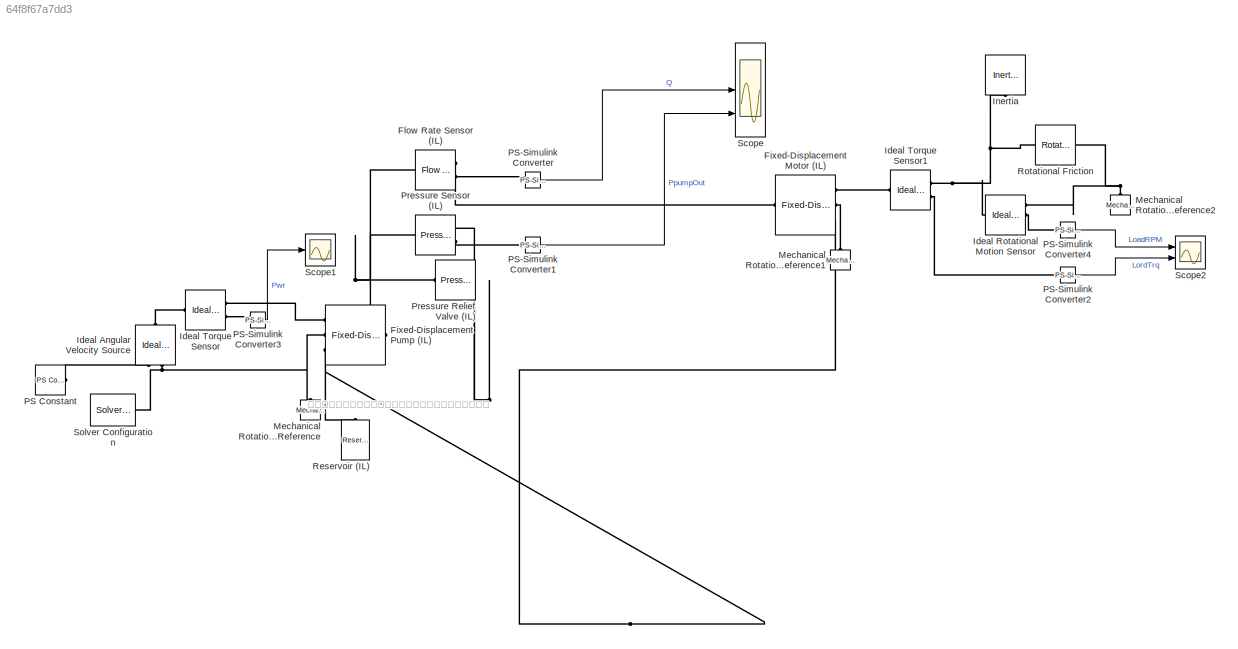
MODEL slx_64f8f67a7dd3
KIND model
CONFIG AbsTol = auto
CONFIG EnableMultiTasking = off
CONFIG FixedStep = auto
CONFIG MaxStep = auto
CONFIG MinStep = auto
CONFIG RelTol = 1e-3
CONFIG SampleTimeConstraint = Unconstrained
CONFIG SolverName = VariableStepAuto
CONFIG StartTime = 0.0
CONFIG StopTime = 10.0
BLOCK [Reference] Fixed-Displacement Motor (IL)  REF=SimscapeFluids_lib/Isothermal Liquid/Pumps & Motors/Fixed-Displacement
Motor (IL)
  Ports = [0, 0, 0, 0, 0, 1, 3]
  SourceBlock = SimscapeFluids_lib/Isothermal Liquid/Pumps & Motors/Fixed-Displacement\nMotor (IL)
  SourceProductBaseCode = SH
  SourceType = Fixed-Displacement\nMotor (IL)
BLOCK [Reference] Fixed-Displacement Pump (IL)  REF=SimscapeFluids_lib/Isothermal Liquid/Pumps & Motors/Fixed-Displacement
Pump (IL)
  NameLocation = top
  Ports = [0, 0, 0, 0, 0, 1, 3]
  SourceBlock = SimscapeFluids_lib/Isothermal Liquid/Pumps & Motors/Fixed-Displacement\nPump (IL)
  SourceProductBaseCode = SH
  SourceType = Fixed-Displacement\nPump (IL)
BLOCK [Reference] Flow Rate Sensor (IL)  REF=fl_lib/Isothermal Liquid/Sensors/Flow Rate Sensor
(IL)
  Ports = [0, 0, 0, 0, 0, 1, 2]
  SourceBlock = fl_lib/Isothermal Liquid/Sensors/Flow Rate Sensor\n(IL)
  SourceProductBaseCode = PW,SS,VE
  SourceType = Flow Rate Sensor\n(IL)
BLOCK [Reference] Ideal Angular Velocity Source  REF=fl_lib/Mechanical/Mechanical Sources/Ideal Angular
Velocity Source
  NameLocation = right
  Ports = [0, 0, 0, 0, 0, 1, 2]
  SourceBlock = fl_lib/Mechanical/Mechanical Sources/Ideal Angular\nVelocity Source
  SourceProductBaseCode = PW,SS,VE
  SourceType = Ideal Angular\nVelocity Source
BLOCK [Reference] Ideal Rotational Motion Sensor  REF=fl_lib/Mechanical/Mechanical Sensors/Ideal Rotational
Motion Sensor
  Ports = [0, 0, 0, 0, 0, 1, 3]
  SourceBlock = fl_lib/Mechanical/Mechanical Sensors/Ideal Rotational\nMotion Sensor
  SourceProductBaseCode = PW,SS,VE
  SourceType = Ideal Rotational\nMotion Sensor
BLOCK [Reference] Ideal Torque Sensor  REF=fl_lib/Mechanical/Mechanical Sensors/Ideal Torque Sensor
  Ports = [0, 0, 0, 0, 0, 1, 2]
  SourceBlock = fl_lib/Mechanical/Mechanical Sensors/Ideal Torque Sensor
  SourceProductBaseCode = PW,SS,VE
  SourceType = Ideal Torque Sensor
BLOCK [Reference] Ideal Torque Sensor1  REF=fl_lib/Mechanical/Mechanical Sensors/Ideal Torque Sensor
  Ports = [0, 0, 0, 0, 0, 1, 2]
  SourceBlock = fl_lib/Mechanical/Mechanical Sensors/Ideal Torque Sensor
  SourceProductBaseCode = PW,SS,VE
  SourceType = Ideal Torque Sensor
BLOCK [Reference] Inertia  REF=fl_lib/Mechanical/Rotational Elements/Inertia
  NameLocation = left
  Ports = [0, 0, 0, 0, 0, 1]
  SourceBlock = fl_lib/Mechanical/Rotational Elements/Inertia
  SourceProductBaseCode = PW,SS,VE
  SourceType = Inertia
BLOCK [Reference] Mechanical Rotational Reference  REF=fl_lib/Mechanical/Rotational Elements/Mechanical
Rotational Reference
  NameLocation = right
  Ports = [0, 0, 0, 0, 0, 1]
  SourceBlock = fl_lib/Mechanical/Rotational Elements/Mechanical\nRotational Reference
  SourceProductBaseCode = PW,SS,VE
  SourceType = Mechanical\nRotational Reference
BLOCK [Reference] Mechanical Rotational Reference1  REF=fl_lib/Mechanical/Rotational Elements/Mechanical
Rotational Reference
  NameLocation = right
  Ports = [0, 0, 0, 0, 0, 1]
  SourceBlock = fl_lib/Mechanical/Rotational Elements/Mechanical\nRotational Reference
  SourceProductBaseCode = PW,SS,VE
  SourceType = Mechanical\nRotational Reference
BLOCK [Reference] Mechanical Rotational Reference2  REF=fl_lib/Mechanical/Rotational Elements/Mechanical
Rotational Reference
  NameLocation = right
  Ports = [0, 0, 0, 0, 0, 1]
  SourceBlock = fl_lib/Mechanical/Rotational Elements/Mechanical\nRotational Reference
  SourceProductBaseCode = PW,SS,VE
  SourceType = Mechanical\nRotational Reference
BLOCK [Reference] PS Constant  REF=fl_lib/Physical Signals/Sources/PS Constant
  AttributesFormatString = %<constant> %<constant_unit>
  Ports = [0, 0, 0, 0, 0, 0, 1]
  SourceBlock = fl_lib/Physical Signals/Sources/PS Constant
  SourceProductBaseCode = PW,SS,VE
  SourceType = PS Constant
BLOCK [Reference] PS-Simulink Converter  REF=nesl_utility/PS-Simulink
Converter
  AttributesFormatString = %<Unit>
  Ports = [0, 1, 0, 0, 0, 1]
  SourceBlock = nesl_utility/PS-Simulink\nConverter
  SourceProductBaseCode = SS,PW,VE
  SourceType = PS-Simulink\nConverter
BLOCK [Reference] PS-Simulink Converter1  REF=nesl_utility/PS-Simulink
Converter
  AttributesFormatString = %<Unit>
  Ports = [0, 1, 0, 0, 0, 1]
  SourceBlock = nesl_utility/PS-Simulink\nConverter
  SourceProductBaseCode = SS,PW,VE
  SourceType = PS-Simulink\nConverter
BLOCK [Reference] PS-Simulink Converter2  REF=nesl_utility/PS-Simulink
Converter
  AttributesFormatString = %<Unit>
  Ports = [0, 1, 0, 0, 0, 1]
  SourceBlock = nesl_utility/PS-Simulink\nConverter
  SourceProductBaseCode = SS,PW,VE
  SourceType = PS-Simulink\nConverter
BLOCK [Reference] PS-Simulink Converter3  REF=nesl_utility/PS-Simulink
Converter
  AttributesFormatString = %<Unit>
  Ports = [0, 1, 0, 0, 0, 1]
  SourceBlock = nesl_utility/PS-Simulink\nConverter
  SourceProductBaseCode = SS,PW,VE
  SourceType = PS-Simulink\nConverter
BLOCK [Reference] PS-Simulink Converter4  REF=nesl_utility/PS-Simulink
Converter
  AttributesFormatString = %<Unit>
  Ports = [0, 1, 0, 0, 0, 1]
  SourceBlock = nesl_utility/PS-Simulink\nConverter
  SourceProductBaseCode = SS,PW,VE
  SourceType = PS-Simulink\nConverter
BLOCK [Reference] Pressure Relief Valve (IL)  REF=SimscapeFluids_lib/Isothermal Liquid/Valves & Orifices/Pressure Control
Valves/Pressure Relief
Valve (IL)
  AttributesFormatString = %<p_set_differential> %<p_set_differential_unit>
  Ports = [0, 0, 0, 0, 0, 1, 1]
  SourceBlock = SimscapeFluids_lib/Isothermal Liquid/Valves & Orifices/Pressure Control\nValves/Pressure Relief\nValve (IL)
  SourceProductBaseCode = SH
  SourceType = Pressure Relief\nValve (IL)
BLOCK [Reference] Pressure Sensor (IL)  REF=fl_lib/Isothermal Liquid/Sensors/Pressure Sensor (IL)
  Ports = [0, 0, 0, 0, 0, 1, 2]
  SourceBlock = fl_lib/Isothermal Liquid/Sensors/Pressure Sensor (IL)
  SourceProductBaseCode = PW,SS,VE
  SourceType = Pressure Sensor (IL)
BLOCK [Reference] Reservoir (IL)  REF=fl_lib/Isothermal Liquid/Elements/Reservoir (IL)
  NameLocation = right
  Ports = [0, 0, 0, 0, 0, 1]
  SourceBlock = fl_lib/Isothermal Liquid/Elements/Reservoir (IL)
  SourceProductBaseCode = PW,SS,VE
  SourceType = Reservoir (IL)
BLOCK [Reference] Rotational Friction  REF=fl_lib/Mechanical/Rotational Elements/Rotational Friction
  Ports = [0, 0, 0, 0, 0, 1, 1]
  SourceBlock = fl_lib/Mechanical/Rotational Elements/Rotational Friction
  SourceProductBaseCode = PW,SS,VE
  SourceType = Rotational Friction
BLOCK [Scope] Scope
  Floating = off
  NumInputPorts = 3
  Ports = [3]
  ScopeSpecificationString = Simulink.scopes.TimeScopeBlockCfg('CurrentConfiguration', extmgr.ConfigurationSet(extmgr.Configuration('Core','General UI',true),extmgr.Configuration('Core','Source UI',true),extmgr.Configuration('Sources','WiredSimulink',true),extmgr.Configuration('Visuals','Time Domain',true,'SerializedDisplays',{struct('MinYLimReal','-1.00000','MaxYLimReal','1.00000','YLabelReal','','MinYLimMag','0.00000','MaxY...<+2715ch>
BLOCK [Scope] Scope1
  Floating = off
  NumInputPorts = 1
  Ports = [1]
  ScopeSpecificationString = Simulink.scopes.TimeScopeBlockCfg('CurrentConfiguration', extmgr.ConfigurationSet(extmgr.Configuration('Core','General UI',true),extmgr.Configuration('Core','Source UI',true),extmgr.Configuration('Sources','WiredSimulink',true,'DataLoggingVariableName','ScopeData1'),extmgr.Configuration('Visuals','Time Domain',true,'SerializedDisplays',{struct('MinYLimReal','-22.6455','MaxYLimReal','203.80953','YL...<+1411ch>
BLOCK [Scope] Scope2
  Floating = off
  NumInputPorts = 2
  Ports = [2]
  ScopeSpecificationString = Simulink.scopes.TimeScopeBlockCfg('CurrentConfiguration', extmgr.ConfigurationSet(extmgr.Configuration('Core','General UI',true),extmgr.Configuration('Core','Source UI',true),extmgr.Configuration('Sources','WiredSimulink',true,'DataLoggingVariableName','ScopeData1'),extmgr.Configuration('Visuals','Time Domain',true,'SerializedDisplays',{struct('MinYLimReal','-122.00435','MaxYLimReal','1098.03915',...<+1995ch>
BLOCK [Reference] Solver Configuration  REF=nesl_utility/Solver
Configuration
  Ports = [0, 0, 0, 0, 0, 0, 1]
  SourceBlock = nesl_utility/Solver\nConfiguration
  SourceProductBaseCode = SS,PW,VE
  SourceType = Solver\nConfiguration
ANNOTATION (root): 容积效率，泄露，输出压力增加，泄露增大，输出流量降低
LINE PS-Simulink Converter1:1 -> Scope:3
LINE PS-Simulink Converter2:1 -> Scope2:2
LINE PS-Simulink Converter3:1 -> Scope1:1
LINE PS-Simulink Converter4:1 -> Scope2:1
LINE PS-Simulink Converter:1 -> Scope:2
PLINE Fixed-Displacement Motor (IL):LConn1 -- Flow Rate Sensor (IL):RConn1
PLINE Fixed-Displacement Motor (IL):RConn1 -- Ideal Torque Sensor1:LConn1
PLINE Fixed-Displacement Motor (IL):RConn2 -- Mechanical Rotational Reference1:LConn1
PNET net1: Fixed-Displacement Motor (IL):RConn3 -- Fixed-Displacement Pump (IL):RConn3 -- Pressure Relief Valve (IL):RConn1 -- Pressure Sensor (IL):RConn1 -- Reservoir (IL):LConn1
PNET net2: Fixed-Displacement Pump (IL):LConn1 -- Flow Rate Sensor (IL):LConn1 -- Pressure Relief Valve (IL):LConn1 -- Pressure Sensor (IL):LConn1
PLINE Fixed-Displacement Pump (IL):RConn1 -- Ideal Torque Sensor:RConn1
PNET net3: Fixed-Displacement Pump (IL):RConn2 -- Ideal Angular Velocity Source:RConn2 -- Mechanical Rotational Reference:LConn1 -- Solver Configuration:RConn1
PLINE Flow Rate Sensor (IL):RConn2 -- PS-Simulink Converter:LConn1
PLINE Ideal Angular Velocity Source:LConn1 -- Ideal Torque Sensor:LConn1
PLINE Ideal Angular Velocity Source:RConn1 -- PS Constant:RConn1
PNET net4: Ideal Rotational Motion Sensor:LConn1 -- Ideal Torque Sensor1:RConn1 -- Inertia:LConn1 -- Rotational Friction:LConn1
PNET net5: Ideal Rotational Motion Sensor:RConn1 -- Mechanical Rotational Reference2:LConn1 -- Rotational Friction:RConn1
PLINE Ideal Rotational Motion Sensor:RConn2 -- PS-Simulink Converter4:LConn1
PLINE Ideal Torque Sensor1:RConn2 -- PS-Simulink Converter2:LConn1
PLINE Ideal Torque Sensor:RConn2 -- PS-Simulink Converter3:LConn1
PLINE PS-Simulink Converter1:LConn1 -- Pressure Sensor (IL):RConn2
note: PNET lines group multi-terminal physical nets as a canonical sorted terminal list (undirected conserving connections); 2-terminal nets keep the pairwise PLINE form
